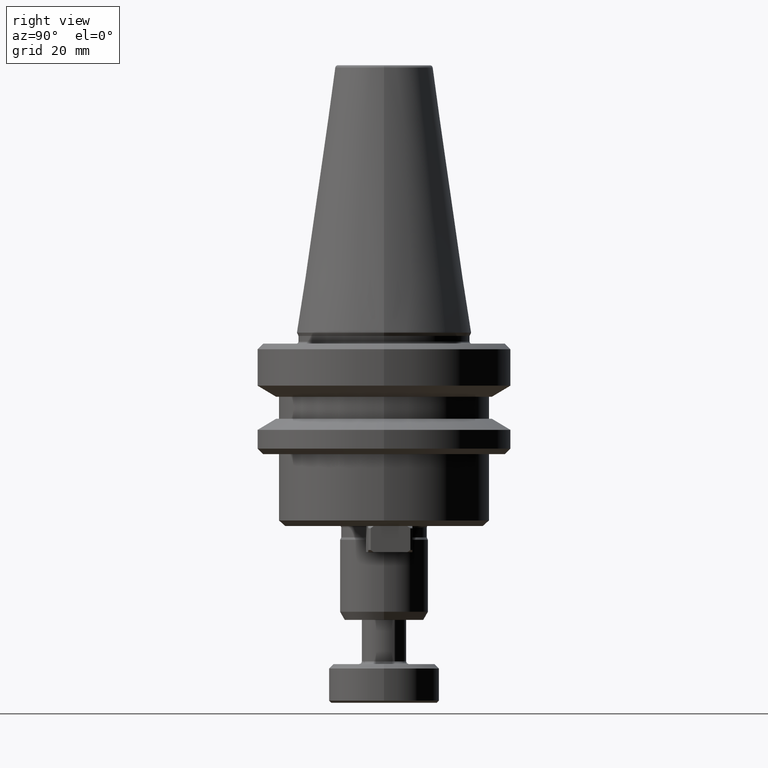
[diagram: clean part render]
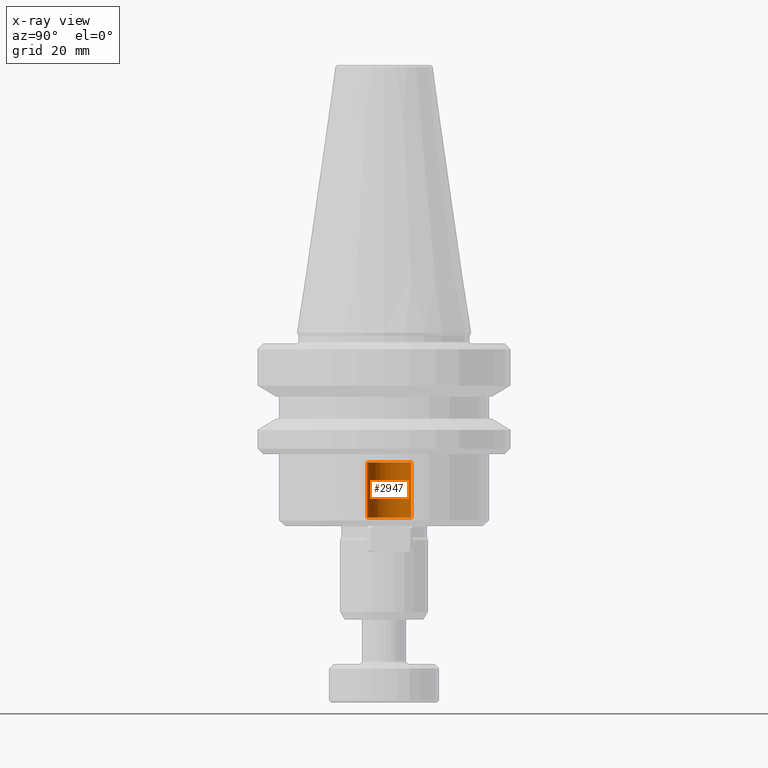
[diagram: x-ray — body ghosted, one internal face saturated and labeled with its STEP entity id]
A machine part, right view, then the same camera in x-ray: the body is ghosted and one INTERNAL B-rep face — a face not visible from any outside direction — is saturated and labeled: STEP entity #2947.
In plain terms, the highlighted cylindrical surface (edge-blend (fillet) strip) has radius 4 mm, axis along (0, 0, 1).
Its self-contained STEP definition (entity closure, byte-faithful):
#113 = FACE_OUTER_BOUND ( 'NONE', #1139, .T. ) ;
#285 = DIRECTION ( 'NONE',  ( 0.0000000000000000000, 0.0000000000000000000, 1.000000000000000000 ) ) ;
#339 = DIRECTION ( 'NONE',  ( 0.0000000000000000000, 0.0000000000000000000, 1.000000000000000000 ) ) ;
#404 = ORIENTED_EDGE ( 'NONE', *, *, #408, .T. ) ;
#408 = EDGE_CURVE ( 'NONE', #2460, #2592, #727, .T. ) ;
#477 = AXIS2_PLACEMENT_3D ( 'NONE', #597, #1942, #3028 ) ;
#591 = CARTESIAN_POINT ( 'NONE',  ( 55.91721257981862400, 50.16000276800149700, 52.57808018129033200 ) ) ;
#597 = CARTESIAN_POINT ( 'NONE',  ( 55.66823971262471100, 54.15224681254510100, 42.57808018129032500 ) ) ;
#611 = ORIENTED_EDGE ( 'NONE', *, *, #2368, .T. ) ;
#727 = CIRCLE ( 'NONE', #2058, 3.999999999999996900 ) ;
#755 = CYLINDRICAL_SURFACE ( 'NONE', #477, 3.999999999999996900 ) ;
#828 = VERTEX_POINT ( 'NONE', #3217 ) ;
#837 = EDGE_CURVE ( 'NONE', #3471, #1937, #1518, .T. ) ;
#929 = DIRECTION ( 'NONE',  ( -0.06224321679888100000, 0.9980610111423687800, 0.0000000000000000000 ) ) ;
#980 = ORIENTED_EDGE ( 'NONE', *, *, #3342, .F. ) ;
#1136 = DIRECTION ( 'NONE',  ( 0.0000000000000000000, 0.0000000000000000000, 1.000000000000000000 ) ) ;
#1139 = EDGE_LOOP ( 'NONE', ( #404, #611, #2815, #980, #1326 ) ) ;
#1284 = CARTESIAN_POINT ( 'NONE',  ( 55.41926684542918500, 58.14449085711457600, 42.57808018129032500 ) ) ;
#1326 = ORIENTED_EDGE ( 'NONE', *, *, #1934, .T. ) ;
#1412 = AXIS2_PLACEMENT_3D ( 'NONE', #1419, #3214, #2905 ) ;
#1419 = CARTESIAN_POINT ( 'NONE',  ( 55.66823971262471100, 54.15224681254510100, 52.57808018129033200 ) ) ;
#1420 = CARTESIAN_POINT ( 'NONE',  ( 51.67599566804973700, 53.90327394534923400, 42.57808018129032500 ) ) ;
#1518 = CIRCLE ( 'NONE', #1412, 3.999999999999996900 ) ;
#1541 = VECTOR ( 'NONE', #1834, 1000.000000000000000 ) ;
#1573 = CARTESIAN_POINT ( 'NONE',  ( 55.91721257982023700, 50.16000276797562700, 42.57808018129032500 ) ) ;
#1721 = VECTOR ( 'NONE', #339, 1000.000000000000000 ) ;
#1834 = DIRECTION ( 'NONE',  ( 0.0000000000000000000, 0.0000000000000000000, 1.000000000000000000 ) ) ;
#1934 = EDGE_CURVE ( 'NONE', #828, #2460, #2450, .T. ) ;
#1937 = VERTEX_POINT ( 'NONE', #3343 ) ;
#1942 = DIRECTION ( 'NONE',  ( 0.0000000000000000000, 0.0000000000000000000, 1.000000000000000000 ) ) ;
#1958 = CARTESIAN_POINT ( 'NONE',  ( 55.66823971262471100, 54.15224681254510100, 42.57808018129032500 ) ) ;
#2012 = AXIS2_PLACEMENT_3D ( 'NONE', #3069, #1136, #3083 ) ;
#2058 = AXIS2_PLACEMENT_3D ( 'NONE', #1958, #285, #929 ) ;
#2256 = LINE ( 'NONE', #1284, #1541 ) ;
#2368 = EDGE_CURVE ( 'NONE', #2592, #3471, #2446, .T. ) ;
#2446 = LINE ( 'NONE', #1573, #1721 ) ;
#2450 = CIRCLE ( 'NONE', #2012, 3.999999999999996900 ) ;
#2460 = VERTEX_POINT ( 'NONE', #1420 ) ;
#2586 = CARTESIAN_POINT ( 'NONE',  ( 55.91721257982023700, 50.16000276797562000, 42.57808018129032500 ) ) ;
#2592 = VERTEX_POINT ( 'NONE', #2586 ) ;
#2815 = ORIENTED_EDGE ( 'NONE', *, *, #837, .T. ) ;
#2905 = DIRECTION ( 'NONE',  ( -0.06224321679888100000, 0.9980610111423687800, 0.0000000000000000000 ) ) ;
#2947 = ADVANCED_FACE ( 'NONE', ( #113 ), #755, .T. ) ;
#3028 = DIRECTION ( 'NONE',  ( -0.06224321679888100000, 0.9980610111423687800, 0.0000000000000000000 ) ) ;
#3069 = CARTESIAN_POINT ( 'NONE',  ( 55.66823971262471100, 54.15224681254510100, 42.57808018129032500 ) ) ;
#3083 = DIRECTION ( 'NONE',  ( -0.06224321679888100000, 0.9980610111423687800, 0.0000000000000000000 ) ) ;
#3214 = DIRECTION ( 'NONE',  ( -0.0000000000000000000, -0.0000000000000000000, -1.000000000000000000 ) ) ;
#3217 = CARTESIAN_POINT ( 'NONE',  ( 55.41926684542918500, 58.14449085711458300, 42.57808018129032500 ) ) ;
#3342 = EDGE_CURVE ( 'NONE', #828, #1937, #2256, .T. ) ;
#3343 = CARTESIAN_POINT ( 'NONE',  ( 55.41926684543079800, 58.14449085708870500, 52.57808018129033200 ) ) ;
#3471 = VERTEX_POINT ( 'NONE', #591 ) ;